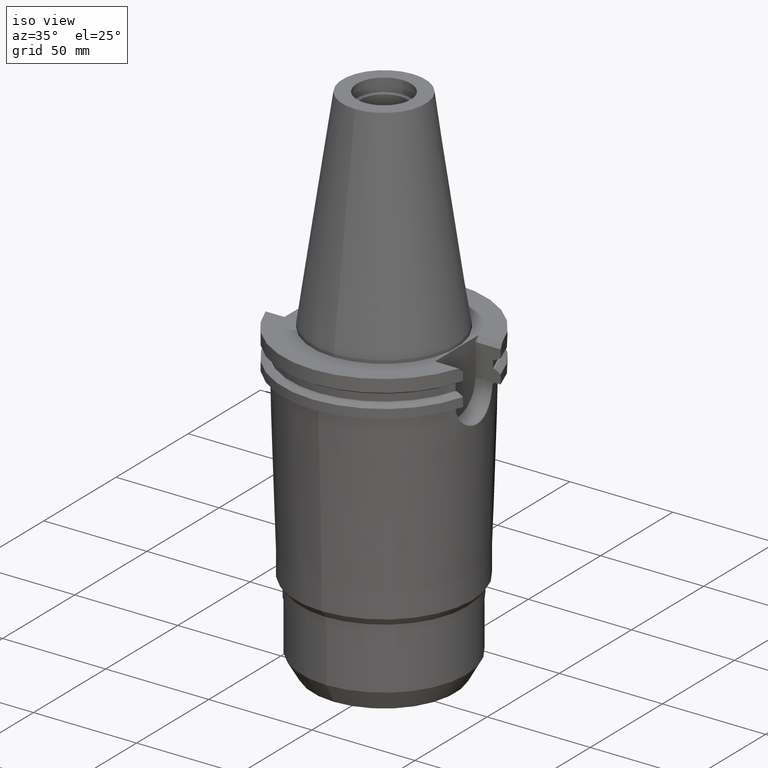
[diagram: clean part render]
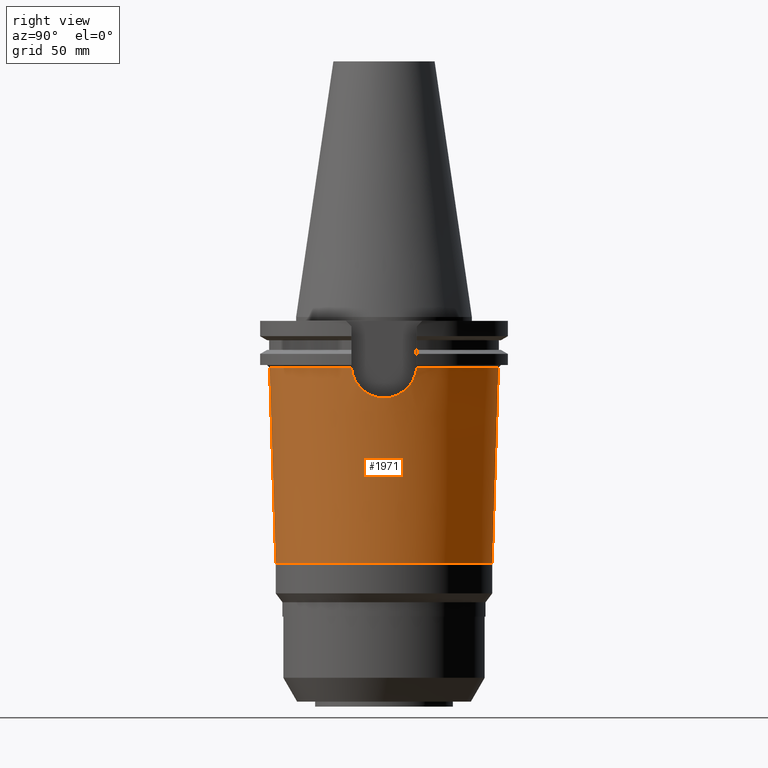
[diagram: tour spotlight — one face highlighted and labeled with its STEP entity id]
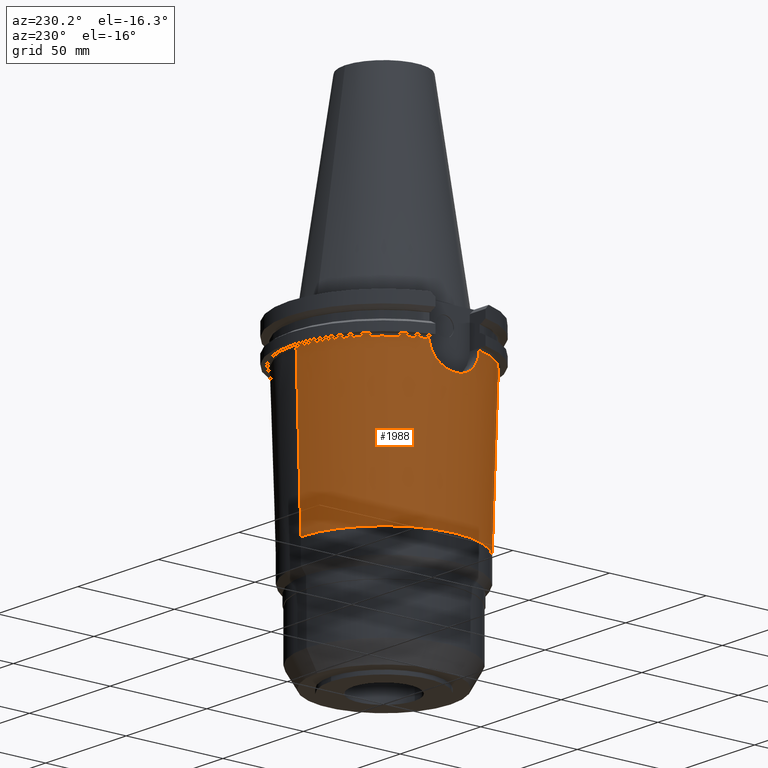
[diagram: tour spotlight — one face highlighted and labeled with its STEP entity id]
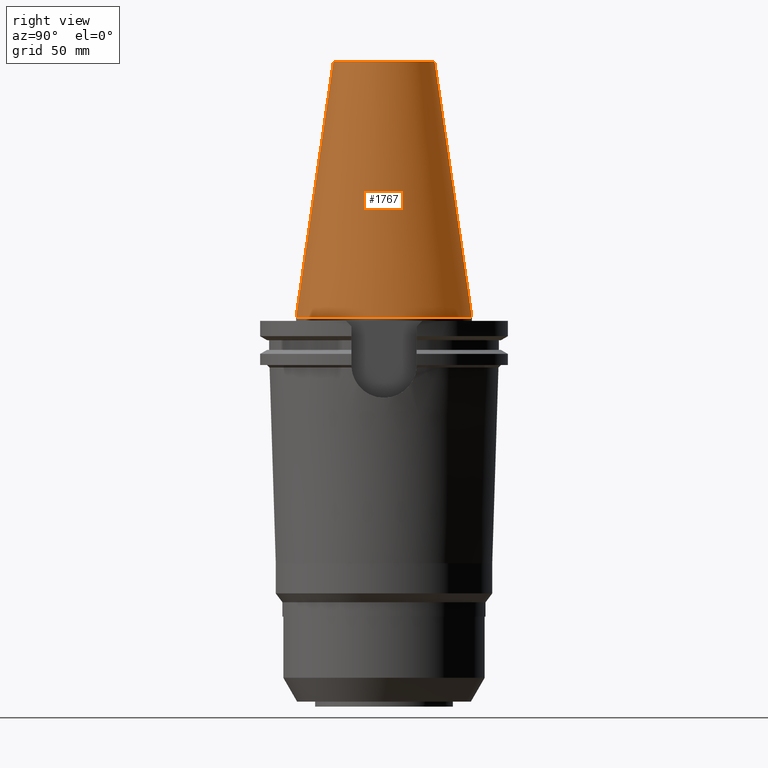
[diagram: tour spotlight — one face highlighted and labeled with its STEP entity id]
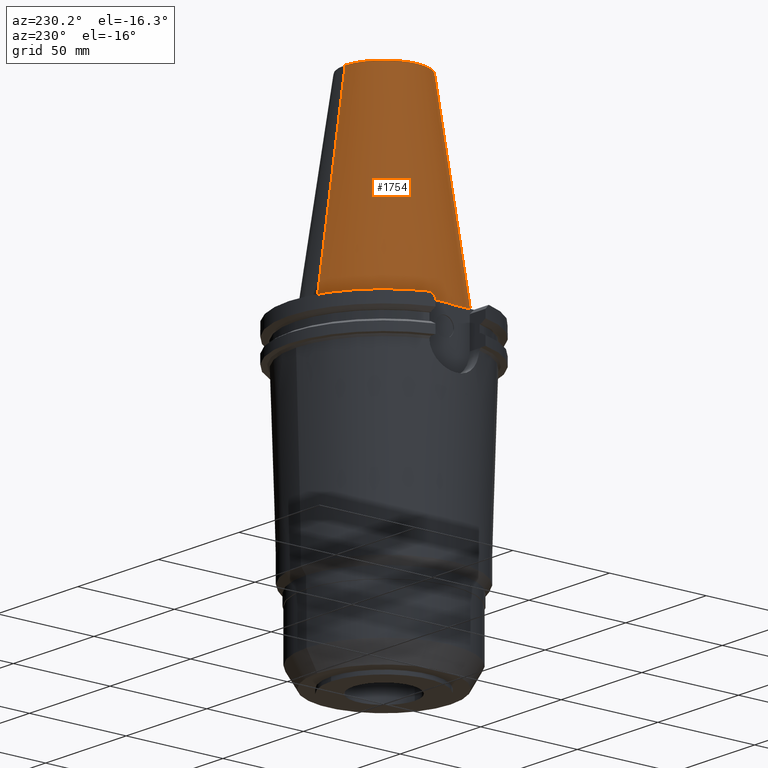
[diagram: tour spotlight — one face highlighted and labeled with its STEP entity id]
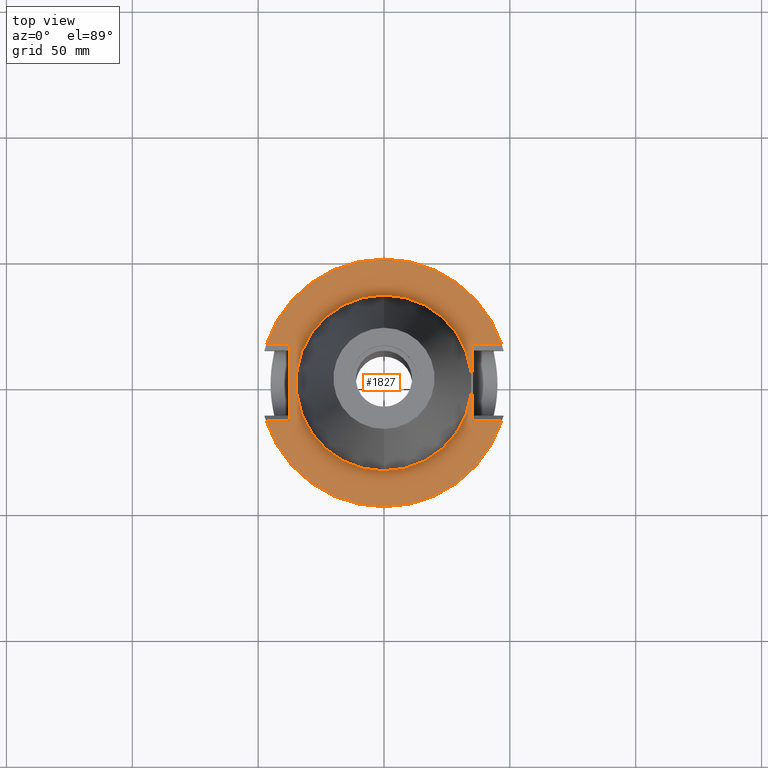
[diagram: tour spotlight — one face highlighted and labeled with its STEP entity id]
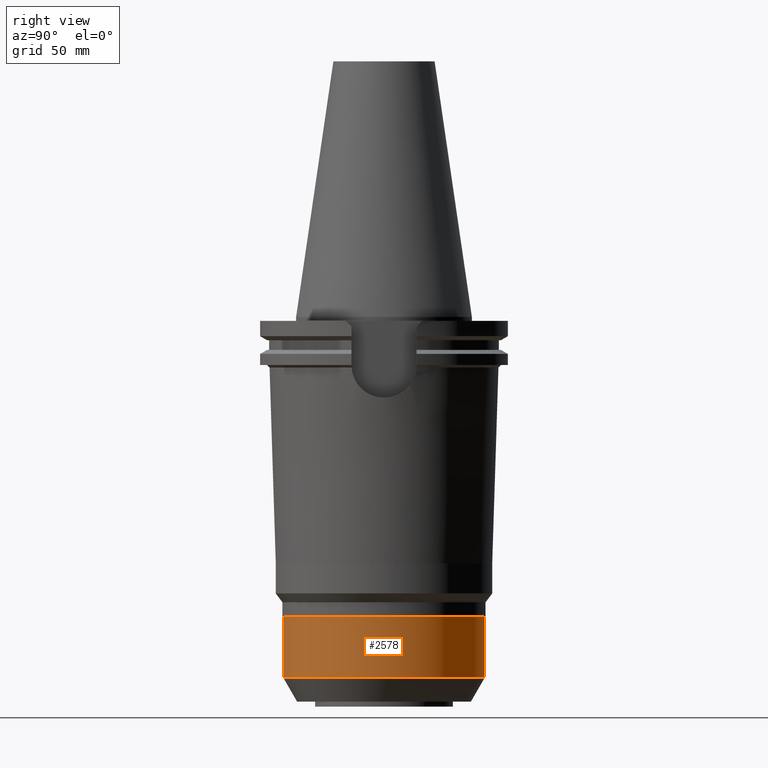
[diagram: tour spotlight — one face highlighted and labeled with its STEP entity id]
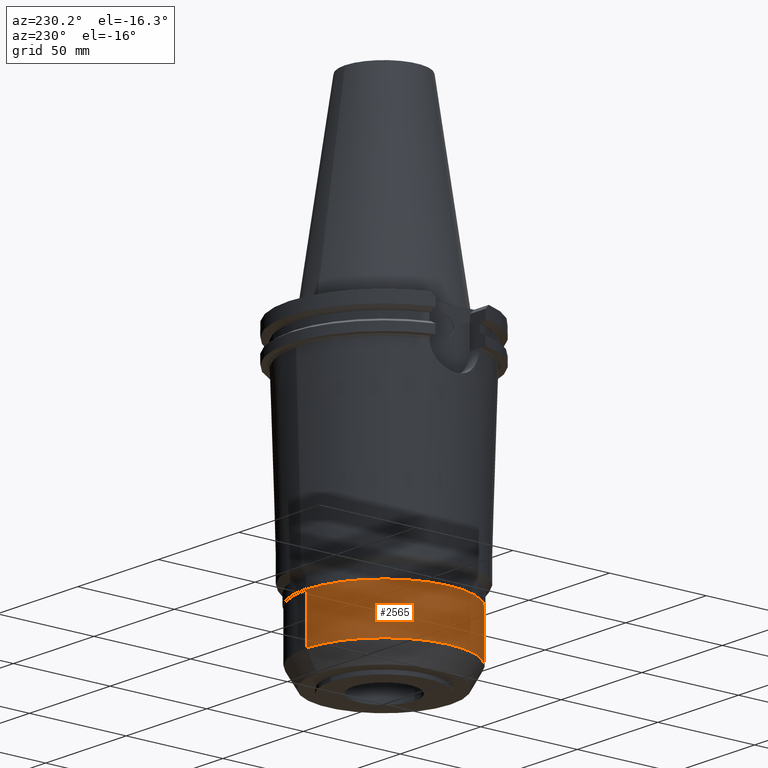
[diagram: tour spotlight — one face highlighted and labeled with its STEP entity id]
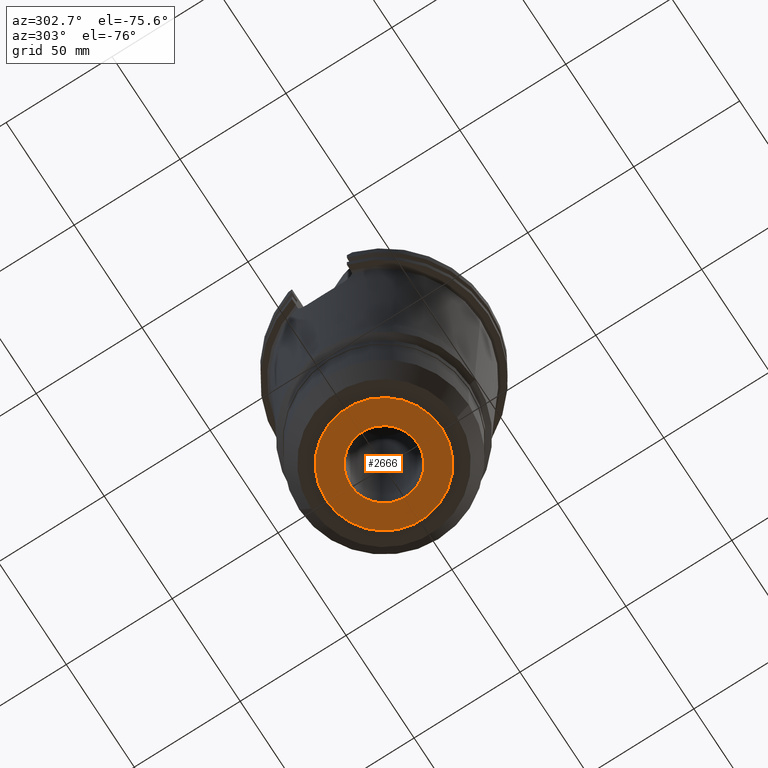
[diagram: tour spotlight — one face highlighted and labeled with its STEP entity id]
A machine part: a face-by-face anatomy tour. The part has 69 B-rep faces; the first image is the clean iso view, then the 8 largest visible faces are spotlighted one at a time (largest first), each with its STEP entity span.

Face 1 — right view, entity #1971. In plain terms, the highlighted conical surface has half-angle 1.818 deg.
Definition (entity closure, byte-faithful):
#273=CARTESIAN_POINT('',(4.359327333376E1,1.292335010584E1,-2.004999921265E1));
#315=CARTESIAN_POINT('',(4.359327198722E1,-1.292335465272E1,-2.004999879980E1));
#316=CARTESIAN_POINT('',(4.358224512286E1,-1.286085571769E1,-2.094248377356E1));
#317=CARTESIAN_POINT('',(4.361612534724E1,-1.254780094384E1,-2.273145474328E1));
#318=CARTESIAN_POINT('',(4.382032866087E1,-1.151788815759E1,-2.529494037644E1));
#319=CARTESIAN_POINT('',(4.414093883589E1,-9.910234163567E0,-2.764186574376E1));
#320=CARTESIAN_POINT('',(4.448729687315E1,-7.918052895322E0,-2.952368735606E1));
#321=CARTESIAN_POINT('',(4.481264642084E1,-5.474461798562E0,-3.100098824809E1));
#322=CARTESIAN_POINT('',(4.503254204422E1,-2.811470170504E0,-3.189310457970E1));
#323=CARTESIAN_POINT('',(4.511165400893E1,-3.325362306715E-2,
-3.219962313284E1));
#324=CARTESIAN_POINT('',(4.503640469766E1,2.724512101552E0,-3.190809163188E1));
#325=CARTESIAN_POINT('',(4.482763512883E1,5.326101034397E0,-3.106305747954E1));
#326=CARTESIAN_POINT('',(4.451148606097E1,7.762367689687E0,-2.964110425093E1));
#327=CARTESIAN_POINT('',(4.416020852370E1,9.810652875452E0,-2.776280663305E1));
#328=CARTESIAN_POINT('',(4.382838439710E1,1.147868029732E1,-2.537937302441E1));
#329=CARTESIAN_POINT('',(4.361602044717E1,1.254629203012E1,-2.275060153601E1));
#330=CARTESIAN_POINT('',(4.358221026612E1,1.286064574387E1,-2.094541645213E1));
#331=CARTESIAN_POINT('',(4.359327333376E1,1.292335010584E1,-2.004999921265E1));
#336=CARTESIAN_POINT('',(0.E0,0.E0,-2.005E1));
#337=DIRECTION('',(0.E0,0.E0,1.E0));
#338=DIRECTION('',(9.587572133819E-1,2.842263284570E-1,0.E0));
#339=AXIS2_PLACEMENT_3D('',#336,#337,#338);
#344=DIRECTION('',(0.E0,-3.173348402204E-2,-9.994963661724E-1));
#345=VECTOR('',#344,7.778917726109E1);
#346=CARTESIAN_POINT('',(0.E0,4.546852161370E1,-2.005E1));
#347=LINE('',#346,#345);
#351=CARTESIAN_POINT('',(0.E0,0.E0,-9.78E1));
#352=DIRECTION('',(0.E0,0.E0,-1.E0));
#353=DIRECTION('',(0.E0,1.E0,0.E0));
#354=AXIS2_PLACEMENT_3D('',#351,#352,#353);
#359=CARTESIAN_POINT('',(0.E0,0.E0,-2.005E1));
#360=DIRECTION('',(0.E0,0.E0,1.E0));
#361=DIRECTION('',(0.E0,-1.E0,0.E0));
#362=AXIS2_PLACEMENT_3D('',#359,#360,#361);
#388=DIRECTION('',(0.E0,3.173348402204E-2,-9.994963661724E-1));
#389=VECTOR('',#388,7.778917726109E1);
#390=CARTESIAN_POINT('',(0.E0,-4.546852161370E1,-2.005E1));
#391=LINE('',#390,#389);
#786=CARTESIAN_POINT('',(4.359327198722E1,-1.292335465272E1,-2.004999879980E1));
#1560=CARTESIAN_POINT('',(0.E0,4.3E1,-9.78E1));
#1561=VERTEX_POINT('',#1560);
#1562=CARTESIAN_POINT('',(0.E0,-4.3E1,-9.78E1));
#1563=VERTEX_POINT('',#1562);
#1566=CARTESIAN_POINT('',(0.E0,-4.546852161370E1,-2.005E1));
#1567=VERTEX_POINT('',#1566);
#1568=CARTESIAN_POINT('',(0.E0,4.546852161370E1,-2.005E1));
#1569=VERTEX_POINT('',#1568);
#1579=VERTEX_POINT('',#786);
#1583=VERTEX_POINT('',#273);
#1954=CARTESIAN_POINT('',(0.E0,0.E0,-5.8925E1));
#1955=DIRECTION('',(0.E0,0.E0,1.E0));
#1956=DIRECTION('',(0.E0,1.E0,0.E0));
#1957=AXIS2_PLACEMENT_3D('',#1954,#1955,#1956);
#1958=CONICAL_SURFACE('',#1957,4.423426080685E1,1.8185E0);
#1959=ORIENTED_EDGE('',*,*,#1941,.T.);
#1960=ORIENTED_EDGE('',*,*,#1931,.T.);
#1962=ORIENTED_EDGE('',*,*,#1961,.T.);
#1964=ORIENTED_EDGE('',*,*,#1963,.T.);
#1966=ORIENTED_EDGE('',*,*,#1965,.F.);
#1968=ORIENTED_EDGE('',*,*,#1967,.T.);
#1969=EDGE_LOOP('',(#1959,#1960,#1962,#1964,#1966,#1968));
#1970=FACE_OUTER_BOUND('',#1969,.F.);
#332=B_SPLINE_CURVE_WITH_KNOTS('',3,(#315,#316,#317,#318,#319,#320,#321,#322,
#323,#324,#325,#326,#327,#328,#329,#330,#331),.UNSPECIFIED.,.F.,.F.,(4,1,1,1,1,
1,1,1,1,1,1,1,1,1,4),(0.E0,7.142857142857E-2,1.428571428571E-1,
2.142857142857E-1,2.857142857143E-1,3.571428571429E-1,4.285714285714E-1,5.E-1,
5.714285714286E-1,6.428571428571E-1,7.142857142857E-1,7.857142857143E-1,
8.571428571429E-1,9.285714285714E-1,1.E0),.UNSPECIFIED.);
#340=CIRCLE('',#339,4.546852161370E1);
#355=CIRCLE('',#354,4.3E1);
#363=CIRCLE('',#362,4.546852161370E1);
#1931=EDGE_CURVE('',#1583,#1569,#340,.T.);
#1941=EDGE_CURVE('',#1579,#1583,#332,.T.);
#1961=EDGE_CURVE('',#1569,#1561,#347,.T.);
#1963=EDGE_CURVE('',#1561,#1563,#355,.T.);
#1965=EDGE_CURVE('',#1567,#1563,#391,.T.);
#1967=EDGE_CURVE('',#1567,#1579,#363,.T.);
#1971=ADVANCED_FACE('',(#1970),#1958,.T.);

Face 2 — auxiliary view, entity #1988. In plain terms, the highlighted conical surface has half-angle 1.818 deg.
Definition (entity closure, byte-faithful):
#293=CARTESIAN_POINT('',(0.E0,0.E0,-2.005E1));
#294=DIRECTION('',(0.E0,0.E0,-1.E0));
#295=DIRECTION('',(-9.587571427498E-1,2.842265667143E-1,0.E0));
#296=AXIS2_PLACEMENT_3D('',#293,#294,#295);
#344=DIRECTION('',(0.E0,-3.173348402204E-2,-9.994963661724E-1));
#345=VECTOR('',#344,7.778917726109E1);
#346=CARTESIAN_POINT('',(0.E0,4.546852161370E1,-2.005E1));
#347=LINE('',#346,#345);
#367=CARTESIAN_POINT('',(-4.359327198691E1,1.292335465377E1,-2.004999879946E1));
#368=CARTESIAN_POINT('',(-4.358224517804E1,1.286085603344E1,-2.094247928027E1));
#369=CARTESIAN_POINT('',(-4.361612484802E1,1.254780374373E1,-2.273144488473E1));
#370=CARTESIAN_POINT('',(-4.382032817940E1,1.151789051669E1,-2.529493750795E1));
#371=CARTESIAN_POINT('',(-4.414093928175E1,9.910231979335E0,-2.764186829752E1));
#372=CARTESIAN_POINT('',(-4.448729574629E1,7.918058408845E0,-2.952368102028E1));
#373=CARTESIAN_POINT('',(-4.481264301777E1,5.474491085956E0,-3.100097364807E1));
#374=CARTESIAN_POINT('',(-4.503254008490E1,2.811503953157E0,-3.189309696437E1));
#375=CARTESIAN_POINT('',(-4.511165407275E1,3.329223770335E-2,
-3.219962337975E1));
#376=CARTESIAN_POINT('',(-4.503640624739E1,-2.724486380600E0,
-3.190809765374E1));
#377=CARTESIAN_POINT('',(-4.482763744410E1,-5.326081369935E0,
-3.106306746756E1));
#378=CARTESIAN_POINT('',(-4.451148574028E1,-7.762371436607E0,
-2.964110337985E1));
#379=CARTESIAN_POINT('',(-4.416020727164E1,-9.810659123426E0,
-2.776279896865E1));
#380=CARTESIAN_POINT('',(-4.382838469859E1,-1.147867878449E1,
-2.537937345500E1));
#381=CARTESIAN_POINT('',(-4.361602113614E1,-1.254628826793E1,
-2.275061402859E1));
#382=CARTESIAN_POINT('',(-4.358221019311E1,-1.286064533047E1,
-2.094542235767E1));
#383=CARTESIAN_POINT('',(-4.359327333372E1,-1.292335010598E1,
-2.004999921260E1));
#388=DIRECTION('',(0.E0,3.173348402204E-2,-9.994963661724E-1));
#389=VECTOR('',#388,7.778917726109E1);
#390=CARTESIAN_POINT('',(0.E0,-4.546852161370E1,-2.005E1));
#391=LINE('',#390,#389);
#395=CARTESIAN_POINT('',(0.E0,0.E0,-9.78E1));
#396=DIRECTION('',(0.E0,0.E0,-1.E0));
#397=DIRECTION('',(0.E0,-1.E0,0.E0));
#398=AXIS2_PLACEMENT_3D('',#395,#396,#397);
#791=CARTESIAN_POINT('',(0.E0,0.E0,-2.005E1));
#792=DIRECTION('',(0.E0,0.E0,-1.E0));
#793=DIRECTION('',(0.E0,-1.E0,0.E0));
#794=AXIS2_PLACEMENT_3D('',#791,#792,#793);
#1560=CARTESIAN_POINT('',(0.E0,4.3E1,-9.78E1));
#1561=VERTEX_POINT('',#1560);
#1562=CARTESIAN_POINT('',(0.E0,-4.3E1,-9.78E1));
#1563=VERTEX_POINT('',#1562);
#1564=VERTEX_POINT('',#367);
#1565=VERTEX_POINT('',#383);
#1566=CARTESIAN_POINT('',(0.E0,-4.546852161370E1,-2.005E1));
#1567=VERTEX_POINT('',#1566);
#1568=CARTESIAN_POINT('',(0.E0,4.546852161370E1,-2.005E1));
#1569=VERTEX_POINT('',#1568);
#1972=CARTESIAN_POINT('',(0.E0,0.E0,-5.8925E1));
#1973=DIRECTION('',(0.E0,0.E0,1.E0));
#1974=DIRECTION('',(0.E0,1.E0,0.E0));
#1975=AXIS2_PLACEMENT_3D('',#1972,#1973,#1974);
#1976=CONICAL_SURFACE('',#1975,4.423426080685E1,1.8185E0);
#1978=ORIENTED_EDGE('',*,*,#1977,.T.);
#1980=ORIENTED_EDGE('',*,*,#1979,.F.);
#1981=ORIENTED_EDGE('',*,*,#1965,.T.);
#1983=ORIENTED_EDGE('',*,*,#1982,.T.);
#1984=ORIENTED_EDGE('',*,*,#1961,.F.);
#1985=ORIENTED_EDGE('',*,*,#1929,.F.);
#1986=EDGE_LOOP('',(#1978,#1980,#1981,#1983,#1984,#1985));
#1987=FACE_OUTER_BOUND('',#1986,.F.);
#297=CIRCLE('',#296,4.546852161370E1);
#384=B_SPLINE_CURVE_WITH_KNOTS('',3,(#367,#368,#369,#370,#371,#372,#373,#374,
#375,#376,#377,#378,#379,#380,#381,#382,#383),.UNSPECIFIED.,.F.,.F.,(4,1,1,1,1,
1,1,1,1,1,1,1,1,1,4),(0.E0,7.142857142857E-2,1.428571428571E-1,
2.142857142857E-1,2.857142857143E-1,3.571428571429E-1,4.285714285714E-1,5.E-1,
5.714285714286E-1,6.428571428571E-1,7.142857142857E-1,7.857142857143E-1,
8.571428571429E-1,9.285714285714E-1,1.E0),.UNSPECIFIED.);
#399=CIRCLE('',#398,4.3E1);
#795=CIRCLE('',#794,4.546852161370E1);
#1929=EDGE_CURVE('',#1564,#1569,#297,.T.);
#1961=EDGE_CURVE('',#1569,#1561,#347,.T.);
#1965=EDGE_CURVE('',#1567,#1563,#391,.T.);
#1977=EDGE_CURVE('',#1564,#1565,#384,.T.);
#1979=EDGE_CURVE('',#1567,#1565,#795,.T.);
#1982=EDGE_CURVE('',#1563,#1561,#399,.T.);
#1988=ADVANCED_FACE('',(#1987),#1976,.T.);

Face 3 — right view, entity #1767. In plain terms, the highlighted conical surface has half-angle 8.297 deg.
Definition (entity closure, byte-faithful):
#26=CARTESIAN_POINT('',(0.E0,1.846767373114E-14,1.016E2));
#27=DIRECTION('',(0.E0,0.E0,-1.E0));
#28=DIRECTION('',(0.E0,1.E0,0.E0));
#29=AXIS2_PLACEMENT_3D('',#26,#27,#28);
#50=DIRECTION('',(0.E0,-1.443069799457E-1,-9.895329683942E-1));
#51=VECTOR('',#50,1.026746993229E2);
#52=CARTESIAN_POINT('',(0.E0,-2.010832422387E1,1.016E2));
#53=LINE('',#52,#51);
#65=DIRECTION('',(0.E0,1.443069799457E-1,-9.895329683942E-1));
#66=VECTOR('',#65,1.026746993229E2);
#67=CARTESIAN_POINT('',(0.E0,2.010832422387E1,1.016E2));
#68=LINE('',#67,#66);
#72=CARTESIAN_POINT('',(0.E0,1.846767373114E-14,8.242295734817E-13));
#73=DIRECTION('',(0.E0,0.E0,-1.E0));
#74=DIRECTION('',(0.E0,1.E0,0.E0));
#75=AXIS2_PLACEMENT_3D('',#72,#73,#74);
#1488=CARTESIAN_POINT('',(0.E0,-2.010832422388E1,1.016E2));
#1489=CARTESIAN_POINT('',(0.E0,2.010832422388E1,1.016E2));
#1490=VERTEX_POINT('',#1488);
#1491=VERTEX_POINT('',#1489);
#1662=CARTESIAN_POINT('',(0.E0,3.4925E1,5.115907697473E-13));
#1663=VERTEX_POINT('',#1662);
#1664=CARTESIAN_POINT('',(0.E0,-3.4925E1,5.115907697473E-13));
#1665=VERTEX_POINT('',#1664);
#1755=CARTESIAN_POINT('',(0.E0,1.846767373114E-14,5.08E1));
#1756=DIRECTION('',(0.E0,0.E0,-1.E0));
#1757=DIRECTION('',(0.E0,-1.E0,0.E0));
#1758=AXIS2_PLACEMENT_3D('',#1755,#1756,#1757);
#1759=CONICAL_SURFACE('',#1758,2.751666211194E1,8.29715E0);
#1760=ORIENTED_EDGE('',*,*,#1745,.T.);
#1762=ORIENTED_EDGE('',*,*,#1761,.T.);
#1763=ORIENTED_EDGE('',*,*,#1748,.F.);
#1764=ORIENTED_EDGE('',*,*,#1729,.F.);
#1765=EDGE_LOOP('',(#1760,#1762,#1763,#1764));
#1766=FACE_OUTER_BOUND('',#1765,.F.);
#30=CIRCLE('',#29,2.010832422388E1);
#76=CIRCLE('',#75,3.4925E1);
#1729=EDGE_CURVE('',#1491,#1490,#30,.T.);
#1745=EDGE_CURVE('',#1491,#1663,#68,.T.);
#1748=EDGE_CURVE('',#1490,#1665,#53,.T.);
#1761=EDGE_CURVE('',#1663,#1665,#76,.T.);
#1767=ADVANCED_FACE('',(#1766),#1759,.T.);

Face 4 — auxiliary view, entity #1754. In plain terms, the highlighted conical surface has half-angle 8.297 deg.
Definition (entity closure, byte-faithful):
#17=CARTESIAN_POINT('',(0.E0,1.846767373114E-14,1.016E2));
#18=DIRECTION('',(0.E0,0.E0,-1.E0));
#19=DIRECTION('',(0.E0,-1.E0,0.E0));
#20=AXIS2_PLACEMENT_3D('',#17,#18,#19);
#50=DIRECTION('',(0.E0,-1.443069799457E-1,-9.895329683942E-1));
#51=VECTOR('',#50,1.026746993229E2);
#52=CARTESIAN_POINT('',(0.E0,-2.010832422387E1,1.016E2));
#53=LINE('',#52,#51);
#57=CARTESIAN_POINT('',(0.E0,1.846767373114E-14,8.242295734817E-13));
#58=DIRECTION('',(0.E0,0.E0,-1.E0));
#59=DIRECTION('',(0.E0,-1.E0,0.E0));
#60=AXIS2_PLACEMENT_3D('',#57,#58,#59);
#65=DIRECTION('',(0.E0,1.443069799457E-1,-9.895329683942E-1));
#66=VECTOR('',#65,1.026746993229E2);
#67=CARTESIAN_POINT('',(0.E0,2.010832422387E1,1.016E2));
#68=LINE('',#67,#66);
#1488=CARTESIAN_POINT('',(0.E0,-2.010832422388E1,1.016E2));
#1489=CARTESIAN_POINT('',(0.E0,2.010832422388E1,1.016E2));
#1490=VERTEX_POINT('',#1488);
#1491=VERTEX_POINT('',#1489);
#1662=CARTESIAN_POINT('',(0.E0,3.4925E1,5.115907697473E-13));
#1663=VERTEX_POINT('',#1662);
#1664=CARTESIAN_POINT('',(0.E0,-3.4925E1,5.115907697473E-13));
#1665=VERTEX_POINT('',#1664);
#1740=CARTESIAN_POINT('',(0.E0,1.846767373114E-14,5.08E1));
#1741=DIRECTION('',(0.E0,0.E0,-1.E0));
#1742=DIRECTION('',(0.E0,-1.E0,0.E0));
#1743=AXIS2_PLACEMENT_3D('',#1740,#1741,#1742);
#1744=CONICAL_SURFACE('',#1743,2.751666211194E1,8.29715E0);
#1746=ORIENTED_EDGE('',*,*,#1745,.F.);
#1747=ORIENTED_EDGE('',*,*,#1727,.F.);
#1749=ORIENTED_EDGE('',*,*,#1748,.T.);
#1751=ORIENTED_EDGE('',*,*,#1750,.T.);
#1752=EDGE_LOOP('',(#1746,#1747,#1749,#1751));
#1753=FACE_OUTER_BOUND('',#1752,.F.);
#21=CIRCLE('',#20,2.010832422388E1);
#61=CIRCLE('',#60,3.4925E1);
#1727=EDGE_CURVE('',#1490,#1491,#21,.T.);
#1745=EDGE_CURVE('',#1491,#1663,#68,.T.);
#1748=EDGE_CURVE('',#1490,#1665,#53,.T.);
#1750=EDGE_CURVE('',#1665,#1663,#61,.T.);
#1754=ADVANCED_FACE('',(#1753),#1744,.T.);

Face 5 — top view, entity #1827. In plain terms, the highlighted planar face has unit normal (0, 0, -1).
Definition (entity closure, byte-faithful):
#94=DIRECTION('',(0.E0,-1.E0,0.E0));
#95=VECTOR('',#94,3.031E1);
#96=CARTESIAN_POINT('',(3.527E1,1.5155E1,-1.5E0));
#97=LINE('',#96,#95);
#101=DIRECTION('',(1.E0,1.014982473518E-14,0.E0));
#102=VECTOR('',#101,1.155089417397E1);
#103=CARTESIAN_POINT('',(3.527E1,-1.5155E1,-1.5E0));
#104=LINE('',#103,#102);
#108=CARTESIAN_POINT('',(0.E0,2.625887666732E-14,-1.5E0));
#109=DIRECTION('',(0.E0,0.E0,-1.E0));
#110=DIRECTION('',(9.514024724200E-1,-3.079502159004E-1,0.E0));
#111=AXIS2_PLACEMENT_3D('',#108,#109,#110);
#116=CARTESIAN_POINT('',(0.E0,2.625887666732E-14,-1.5E0));
#117=DIRECTION('',(0.E0,0.E0,-1.E0));
#118=DIRECTION('',(0.E0,-1.E0,0.E0));
#119=AXIS2_PLACEMENT_3D('',#116,#117,#118);
#124=DIRECTION('',(0.E0,1.E0,0.E0));
#125=VECTOR('',#124,3.031E1);
#126=CARTESIAN_POINT('',(-3.768E1,-1.5155E1,-1.5E0));
#127=LINE('',#126,#125);
#131=DIRECTION('',(-1.E0,-1.243716813234E-14,0.E0));
#132=VECTOR('',#131,9.140894173969E0);
#133=CARTESIAN_POINT('',(-3.768E1,1.5155E1,-1.5E0));
#134=LINE('',#133,#132);
#138=CARTESIAN_POINT('',(0.E0,2.625887666732E-14,-1.5E0));
#139=DIRECTION('',(0.E0,0.E0,-1.E0));
#140=DIRECTION('',(-9.514024724200E-1,3.079502159004E-1,0.E0));
#141=AXIS2_PLACEMENT_3D('',#138,#139,#140);
#146=CARTESIAN_POINT('',(0.E0,2.625887666732E-14,-1.5E0));
#147=DIRECTION('',(0.E0,0.E0,-1.E0));
#148=DIRECTION('',(0.E0,1.E0,0.E0));
#149=AXIS2_PLACEMENT_3D('',#146,#147,#148);
#154=CARTESIAN_POINT('',(0.E0,2.625887666732E-14,-1.5E0));
#155=DIRECTION('',(0.E0,0.E0,1.E0));
#156=DIRECTION('',(0.E0,-1.E0,0.E0));
#157=AXIS2_PLACEMENT_3D('',#154,#155,#156);
#162=CARTESIAN_POINT('',(0.E0,2.625887666732E-14,-1.5E0));
#163=DIRECTION('',(0.E0,0.E0,1.E0));
#164=DIRECTION('',(0.E0,1.E0,0.E0));
#165=AXIS2_PLACEMENT_3D('',#162,#163,#164);
#221=DIRECTION('',(1.E0,0.E0,0.E0));
#222=VECTOR('',#221,1.155089417397E1);
#223=CARTESIAN_POINT('',(3.527E1,1.5155E1,-1.5E0));
#224=LINE('',#223,#222);
#708=DIRECTION('',(-1.E0,1.204850662821E-14,0.E0));
#709=VECTOR('',#708,9.140894173969E0);
#710=CARTESIAN_POINT('',(-3.768E1,-1.5155E1,-1.5E0));
#711=LINE('',#710,#709);
#1632=CARTESIAN_POINT('',(-3.768E1,-1.5155E1,-1.5E0));
#1633=CARTESIAN_POINT('',(-3.768E1,1.5155E1,-1.5E0));
#1634=VERTEX_POINT('',#1632);
#1635=VERTEX_POINT('',#1633);
#1642=CARTESIAN_POINT('',(3.527E1,1.5155E1,-1.5E0));
#1643=CARTESIAN_POINT('',(3.527E1,-1.5155E1,-1.5E0));
#1644=VERTEX_POINT('',#1642);
#1645=VERTEX_POINT('',#1643);
#1646=CARTESIAN_POINT('',(4.682089417397E1,-1.5155E1,-1.5E0));
#1647=VERTEX_POINT('',#1646);
#1648=CARTESIAN_POINT('',(-6.280856145559E-14,-4.92125E1,-1.5E0));
#1649=CARTESIAN_POINT('',(-4.682089417397E1,-1.5155E1,-1.5E0));
#1650=VERTEX_POINT('',#1648);
#1651=VERTEX_POINT('',#1649);
#1652=CARTESIAN_POINT('',(-4.682089417397E1,1.5155E1,-1.5E0));
#1653=VERTEX_POINT('',#1652);
#1654=CARTESIAN_POINT('',(0.E0,4.92125E1,-1.5E0));
#1655=CARTESIAN_POINT('',(4.682089417397E1,1.5155E1,-1.5E0));
#1656=VERTEX_POINT('',#1654);
#1657=VERTEX_POINT('',#1655);
#1658=CARTESIAN_POINT('',(0.E0,-3.4925E1,-1.5E0));
#1659=CARTESIAN_POINT('',(0.E0,3.4925E1,-1.5E0));
#1660=VERTEX_POINT('',#1658);
#1661=VERTEX_POINT('',#1659);
#1796=CARTESIAN_POINT('',(0.E0,1.206277097160E-14,-1.5E0));
#1797=DIRECTION('',(0.E0,0.E0,-1.E0));
#1798=DIRECTION('',(0.E0,-1.E0,0.E0));
#1799=AXIS2_PLACEMENT_3D('',#1796,#1797,#1798);
#1800=PLANE('',#1799);
#1802=ORIENTED_EDGE('',*,*,#1801,.T.);
#1804=ORIENTED_EDGE('',*,*,#1803,.T.);
#1806=ORIENTED_EDGE('',*,*,#1805,.T.);
#1808=ORIENTED_EDGE('',*,*,#1807,.T.);
#1810=ORIENTED_EDGE('',*,*,#1809,.F.);
#1812=ORIENTED_EDGE('',*,*,#1811,.T.);
#1814=ORIENTED_EDGE('',*,*,#1813,.T.);
#1816=ORIENTED_EDGE('',*,*,#1815,.T.);
#1818=ORIENTED_EDGE('',*,*,#1817,.T.);
#1820=ORIENTED_EDGE('',*,*,#1819,.F.);
#1821=EDGE_LOOP('',(#1802,#1804,#1806,#1808,#1810,#1812,#1814,#1816,#1818,
#1820));
#1822=FACE_OUTER_BOUND('',#1821,.F.);
#1823=ORIENTED_EDGE('',*,*,#1775,.T.);
#1824=ORIENTED_EDGE('',*,*,#1791,.T.);
#1825=EDGE_LOOP('',(#1823,#1824));
#1826=FACE_BOUND('',#1825,.F.);
#112=CIRCLE('',#111,4.92125E1);
#120=CIRCLE('',#119,4.92125E1);
#142=CIRCLE('',#141,4.92125E1);
#150=CIRCLE('',#149,4.92125E1);
#158=CIRCLE('',#157,3.4925E1);
#166=CIRCLE('',#165,3.4925E1);
#1775=EDGE_CURVE('',#1660,#1661,#158,.T.);
#1791=EDGE_CURVE('',#1661,#1660,#166,.T.);
#1801=EDGE_CURVE('',#1644,#1645,#97,.T.);
#1803=EDGE_CURVE('',#1645,#1647,#104,.T.);
#1805=EDGE_CURVE('',#1647,#1650,#112,.T.);
#1807=EDGE_CURVE('',#1650,#1651,#120,.T.);
#1809=EDGE_CURVE('',#1634,#1651,#711,.T.);
#1811=EDGE_CURVE('',#1634,#1635,#127,.T.);
#1813=EDGE_CURVE('',#1635,#1653,#134,.T.);
#1815=EDGE_CURVE('',#1653,#1656,#142,.T.);
#1817=EDGE_CURVE('',#1656,#1657,#150,.T.);
#1819=EDGE_CURVE('',#1644,#1657,#224,.T.);
#1827=ADVANCED_FACE('',(#1822,#1826),#1800,.F.);

Face 6 — right view, entity #2578. In plain terms, the highlighted cylindrical surface (partial cylindrical patch) has radius 40 mm, axis along (0, 0, -1).
Definition (entity closure, byte-faithful):
#1176=CARTESIAN_POINT('',(0.E0,2.625887666732E-14,-1.19E2));
#1177=DIRECTION('',(0.E0,0.E0,-1.E0));
#1178=DIRECTION('',(0.E0,1.E0,0.E0));
#1179=AXIS2_PLACEMENT_3D('',#1176,#1177,#1178);
#1184=DIRECTION('',(0.E0,-1.140377230232E-14,-1.E0));
#1185=VECTOR('',#1184,2.43E1);
#1186=CARTESIAN_POINT('',(0.E0,-4.E1,-1.19E2));
#1187=LINE('',#1186,#1185);
#1191=DIRECTION('',(0.E0,1.111136788431E-14,-1.E0));
#1192=VECTOR('',#1191,2.43E1);
#1193=CARTESIAN_POINT('',(0.E0,4.E1,-1.19E2));
#1194=LINE('',#1193,#1192);
#1205=CARTESIAN_POINT('',(0.E0,0.E0,-1.433E2));
#1206=DIRECTION('',(0.E0,0.E0,1.E0));
#1207=DIRECTION('',(0.E0,-1.E0,0.E0));
#1208=AXIS2_PLACEMENT_3D('',#1205,#1206,#1207);
#1540=CARTESIAN_POINT('',(0.E0,4.E1,-1.433E2));
#1541=VERTEX_POINT('',#1540);
#1542=CARTESIAN_POINT('',(0.E0,-4.E1,-1.433E2));
#1543=VERTEX_POINT('',#1542);
#1544=CARTESIAN_POINT('',(0.E0,4.E1,-1.19E2));
#1545=VERTEX_POINT('',#1544);
#1546=CARTESIAN_POINT('',(0.E0,-4.E1,-1.19E2));
#1547=VERTEX_POINT('',#1546);
#2566=CARTESIAN_POINT('',(0.E0,2.625887666732E-14,1.1442E2));
#2567=DIRECTION('',(0.E0,0.E0,-1.E0));
#2568=DIRECTION('',(0.E0,-1.E0,0.E0));
#2569=AXIS2_PLACEMENT_3D('',#2566,#2567,#2568);
#2570=CYLINDRICAL_SURFACE('',#2569,4.E1);
#2571=ORIENTED_EDGE('',*,*,#2556,.T.);
#2573=ORIENTED_EDGE('',*,*,#2572,.F.);
#2574=ORIENTED_EDGE('',*,*,#2559,.F.);
#2575=ORIENTED_EDGE('',*,*,#2546,.F.);
#2576=EDGE_LOOP('',(#2571,#2573,#2574,#2575));
#2577=FACE_OUTER_BOUND('',#2576,.F.);
#1180=CIRCLE('',#1179,4.E1);
#1209=CIRCLE('',#1208,4.E1);
#2546=EDGE_CURVE('',#1545,#1547,#1180,.T.);
#2556=EDGE_CURVE('',#1545,#1541,#1194,.T.);
#2559=EDGE_CURVE('',#1547,#1543,#1187,.T.);
#2572=EDGE_CURVE('',#1543,#1541,#1209,.T.);
#2578=ADVANCED_FACE('',(#2577),#2570,.T.);

Face 7 — auxiliary view, entity #2565. In plain terms, the highlighted cylindrical surface (partial cylindrical patch) has radius 40 mm, axis along (0, 0, -1).
Definition (entity closure, byte-faithful):
#1168=CARTESIAN_POINT('',(0.E0,2.625887666732E-14,-1.19E2));
#1169=DIRECTION('',(0.E0,0.E0,-1.E0));
#1170=DIRECTION('',(0.E0,-1.E0,0.E0));
#1171=AXIS2_PLACEMENT_3D('',#1168,#1169,#1170);
#1184=DIRECTION('',(0.E0,-1.140377230232E-14,-1.E0));
#1185=VECTOR('',#1184,2.43E1);
#1186=CARTESIAN_POINT('',(0.E0,-4.E1,-1.19E2));
#1187=LINE('',#1186,#1185);
#1191=DIRECTION('',(0.E0,1.111136788431E-14,-1.E0));
#1192=VECTOR('',#1191,2.43E1);
#1193=CARTESIAN_POINT('',(0.E0,4.E1,-1.19E2));
#1194=LINE('',#1193,#1192);
#1213=CARTESIAN_POINT('',(0.E0,0.E0,-1.433E2));
#1214=DIRECTION('',(0.E0,0.E0,1.E0));
#1215=DIRECTION('',(0.E0,1.E0,0.E0));
#1216=AXIS2_PLACEMENT_3D('',#1213,#1214,#1215);
#1540=CARTESIAN_POINT('',(0.E0,4.E1,-1.433E2));
#1541=VERTEX_POINT('',#1540);
#1542=CARTESIAN_POINT('',(0.E0,-4.E1,-1.433E2));
#1543=VERTEX_POINT('',#1542);
#1544=CARTESIAN_POINT('',(0.E0,4.E1,-1.19E2));
#1545=VERTEX_POINT('',#1544);
#1546=CARTESIAN_POINT('',(0.E0,-4.E1,-1.19E2));
#1547=VERTEX_POINT('',#1546);
#2551=CARTESIAN_POINT('',(0.E0,2.625887666732E-14,1.1442E2));
#2552=DIRECTION('',(0.E0,0.E0,-1.E0));
#2553=DIRECTION('',(0.E0,-1.E0,0.E0));
#2554=AXIS2_PLACEMENT_3D('',#2551,#2552,#2553);
#2555=CYLINDRICAL_SURFACE('',#2554,4.E1);
#2557=ORIENTED_EDGE('',*,*,#2556,.F.);
#2558=ORIENTED_EDGE('',*,*,#2544,.F.);
#2560=ORIENTED_EDGE('',*,*,#2559,.T.);
#2562=ORIENTED_EDGE('',*,*,#2561,.F.);
#2563=EDGE_LOOP('',(#2557,#2558,#2560,#2562));
#2564=FACE_OUTER_BOUND('',#2563,.F.);
#1172=CIRCLE('',#1171,4.E1);
#1217=CIRCLE('',#1216,4.E1);
#2544=EDGE_CURVE('',#1547,#1545,#1172,.T.);
#2556=EDGE_CURVE('',#1545,#1541,#1194,.T.);
#2559=EDGE_CURVE('',#1547,#1543,#1187,.T.);
#2561=EDGE_CURVE('',#1541,#1543,#1217,.T.);
#2565=ADVANCED_FACE('',(#2564),#2555,.T.);

Face 8 — auxiliary view, entity #2666. In plain terms, the highlighted planar face has unit normal (0, 0, -1).
Definition (entity closure, byte-faithful):
#1274=CARTESIAN_POINT('',(0.E0,2.625887666732E-14,-1.548E2));
#1275=DIRECTION('',(0.E0,0.E0,1.E0));
#1276=DIRECTION('',(0.E0,-1.E0,0.E0));
#1277=AXIS2_PLACEMENT_3D('',#1274,#1275,#1276);
#1282=CARTESIAN_POINT('',(0.E0,2.625887666732E-14,-1.548E2));
#1283=DIRECTION('',(0.E0,0.E0,1.E0));
#1284=DIRECTION('',(0.E0,1.E0,0.E0));
#1285=AXIS2_PLACEMENT_3D('',#1282,#1283,#1284);
#1290=CARTESIAN_POINT('',(0.E0,2.625887666732E-14,-1.548E2));
#1291=DIRECTION('',(0.E0,0.E0,-1.E0));
#1292=DIRECTION('',(0.E0,-1.E0,0.E0));
#1293=AXIS2_PLACEMENT_3D('',#1290,#1291,#1292);
#1298=CARTESIAN_POINT('',(0.E0,2.625887666732E-14,-1.548E2));
#1299=DIRECTION('',(0.E0,0.E0,-1.E0));
#1300=DIRECTION('',(0.E0,1.E0,0.E0));
#1301=AXIS2_PLACEMENT_3D('',#1298,#1299,#1300);
#1524=CARTESIAN_POINT('',(0.E0,1.5875E1,-1.548E2));
#1525=VERTEX_POINT('',#1524);
#1526=CARTESIAN_POINT('',(0.E0,-1.5875E1,-1.548E2));
#1527=VERTEX_POINT('',#1526);
#1528=CARTESIAN_POINT('',(0.E0,-2.735E1,-1.548E2));
#1529=CARTESIAN_POINT('',(0.E0,2.735E1,-1.548E2));
#1530=VERTEX_POINT('',#1528);
#1531=VERTEX_POINT('',#1529);
#2651=CARTESIAN_POINT('',(0.E0,0.E0,-1.548E2));
#2652=DIRECTION('',(0.E0,0.E0,-1.E0));
#2653=DIRECTION('',(0.E0,-1.E0,0.E0));
#2654=AXIS2_PLACEMENT_3D('',#2651,#2652,#2653);
#2655=PLANE('',#2654);
#2656=ORIENTED_EDGE('',*,*,#2644,.T.);
#2657=ORIENTED_EDGE('',*,*,#2633,.T.);
#2658=EDGE_LOOP('',(#2656,#2657));
#2659=FACE_OUTER_BOUND('',#2658,.F.);
#2661=ORIENTED_EDGE('',*,*,#2660,.T.);
#2663=ORIENTED_EDGE('',*,*,#2662,.T.);
#2664=EDGE_LOOP('',(#2661,#2663));
#2665=FACE_BOUND('',#2664,.F.);
#1278=CIRCLE('',#1277,2.735E1);
#1286=CIRCLE('',#1285,2.735E1);
#1294=CIRCLE('',#1293,1.5875E1);
#1302=CIRCLE('',#1301,1.5875E1);
#2633=EDGE_CURVE('',#1531,#1530,#1286,.T.);
#2644=EDGE_CURVE('',#1530,#1531,#1278,.T.);
#2660=EDGE_CURVE('',#1527,#1525,#1294,.T.);
#2662=EDGE_CURVE('',#1525,#1527,#1302,.T.);
#2666=ADVANCED_FACE('',(#2659,#2665),#2655,.T.);